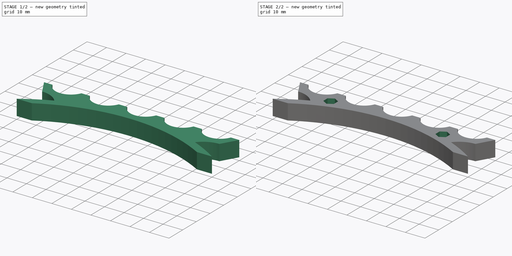
[diagram: build sequence overview — one tinted view per stage of 2, left to right]
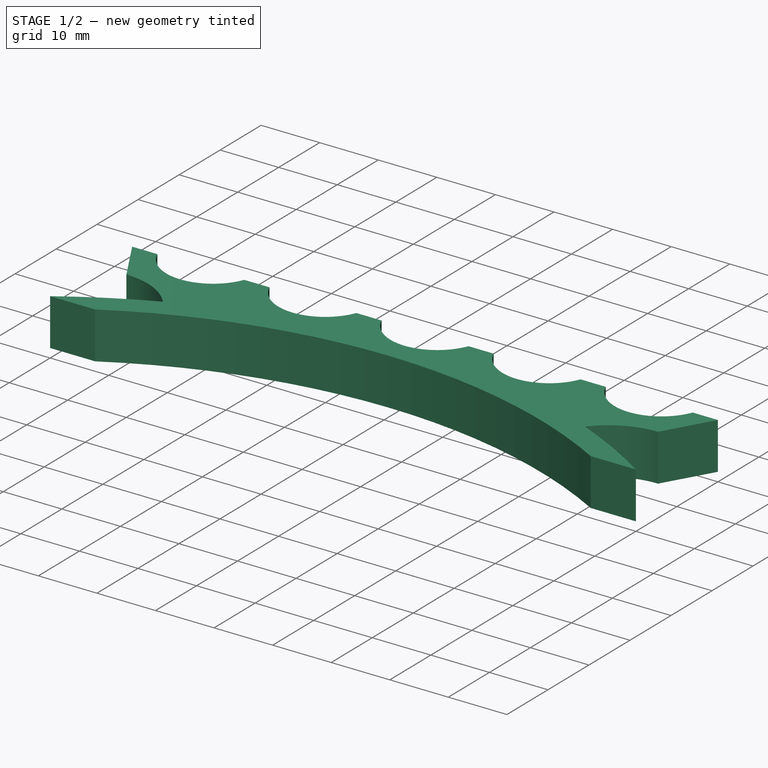
[diagram: stage 1 of 2 — iso view after this stage's code; geometry added in this stage tinted green]
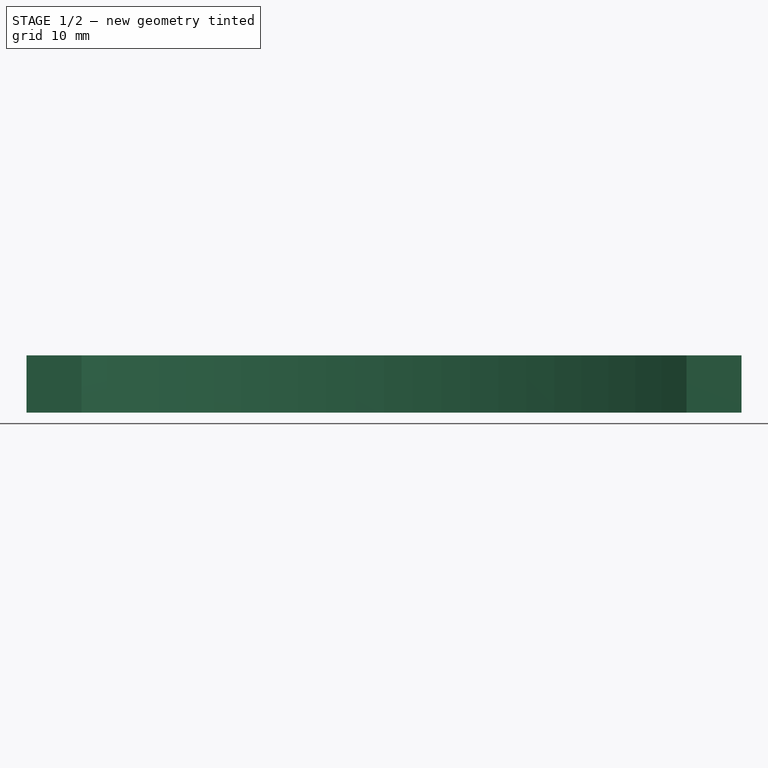
[diagram: stage 1 of 2 — front view after this stage's code; geometry added in this stage tinted green]
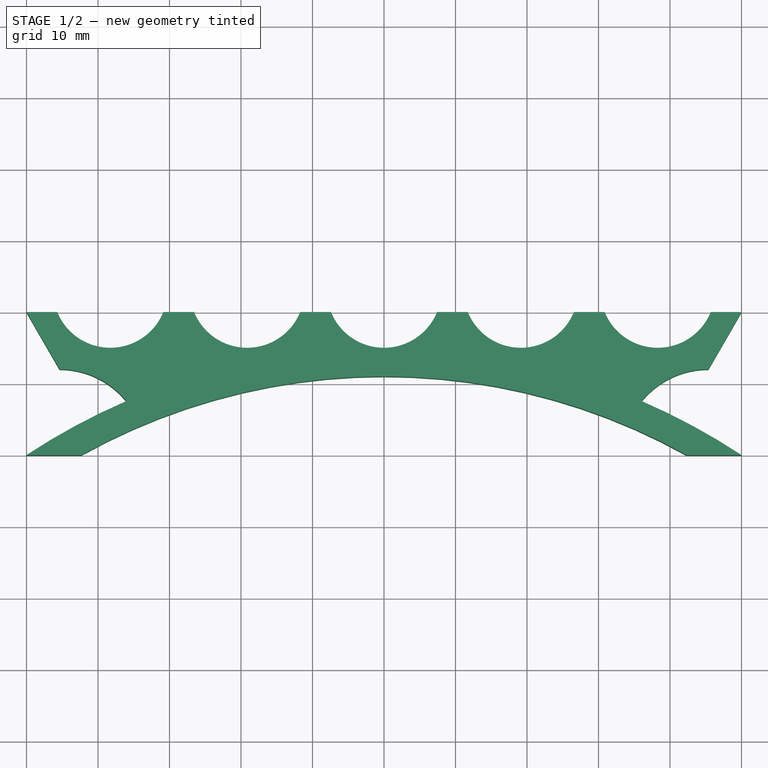
[diagram: stage 1 of 2 — top view after this stage's code; geometry added in this stage tinted green]
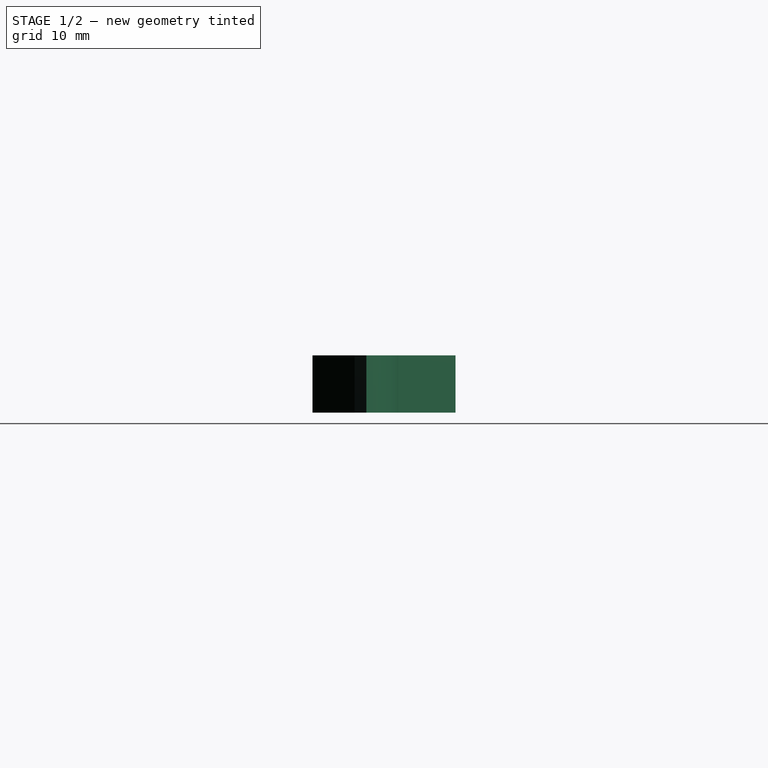
[diagram: stage 1 of 2 — right view after this stage's code; geometry added in this stage tinted green]
FCSTD DOCUMENT  (FreeCAD 0.14R2935 (Git))
Label: penstand1
License: All rights reserved
LicenseURL: http://en.wikipedia.org/wiki/All_rights_reserved
objects: Sketcher::SketchObject×2, PartDesign::Mirrored×2, PartDesign::Pad×1, PartDesign::Pocket×1
note: 8 computed .brp shape members not serialized (recipe doc carries the construction recipe); baked Part::Feature solids carry a one-line shape summary decoded from their .brp

FEATURE [Sketcher::SketchObject] Sketch
  sketch-geometry (18):
    g0: LineSegment StartX=-42.3005 StartY=0 StartZ=0 EndX=-50 EndY=0 EndZ=0
    g1: ArcOfCircle CenterX=0 CenterY=-75.8333 CenterZ=0 NormalX=0 NormalY=0 NormalZ=1 Radius=86.8333 StartAngle=1.5708 EndAngle=2.07962
    g2: ArcOfCircle CenterX=0 CenterY=-75.8333 CenterZ=0 NormalX=0 NormalY=0 NormalZ=1 Radius=90.8333 StartAngle=1.97887 EndAngle=2.15371
    g3: LineSegment StartX=-50 StartY=20 StartZ=0 EndX=-45.3812 EndY=12 EndZ=0
    g4: ArcOfCircle CenterX=-45.3812 CenterY=0 CenterZ=0 NormalX=0 NormalY=0 NormalZ=1 Radius=12 StartAngle=0.679541 EndAngle=1.5708
    g5: LineSegment [constr] StartX=-45.3812 StartY=0 StartZ=0 EndX=-45.3812 EndY=12 EndZ=0
    g6: ArcOfCircle CenterX=-38.2775 CenterY=23 CenterZ=0 NormalX=0 NormalY=0 NormalZ=1 Radius=8 StartAngle=3.52599 EndAngle=5.89879
    g7: ArcOfCircle CenterX=-19.1387 CenterY=23 CenterZ=0 NormalX=0 NormalY=0 NormalZ=1 Radius=8 StartAngle=3.52599 EndAngle=5.89879
    g8: ArcOfCircle CenterX=0 CenterY=23 CenterZ=0 NormalX=0 NormalY=0 NormalZ=1 Radius=8 StartAngle=3.52599 EndAngle=4.71239
    g9: LineSegment StartX=-45.6937 StartY=20 StartZ=0 EndX=-50 EndY=20 EndZ=0
    g10: LineSegment StartX=-30.8613 StartY=20 StartZ=0 EndX=-26.5549 EndY=20 EndZ=0
    g11: LineSegment [constr] StartX=-45.6937 StartY=20 StartZ=0 EndX=-30.8613 EndY=20 EndZ=0
    g12: LineSegment [constr] StartX=-26.5549 StartY=20 StartZ=0 EndX=-11.7225 EndY=20 EndZ=0
    g13: LineSegment StartX=-11.7225 StartY=20 StartZ=0 EndX=-7.4162 EndY=20 EndZ=0
    g14: LineSegment StartX=0 StartY=11 StartZ=0 EndX=0 EndY=15 EndZ=0
    g15: LineSegment [constr] StartX=-50 StartY=20 StartZ=0 EndX=-50 EndY=0 EndZ=0
    g16: ArcOfCircle [constr] CenterX=0 CenterY=-75.8333 CenterZ=0 NormalX=0 NormalY=0 NormalZ=1 Radius=90.8333 StartAngle=1.5708 EndAngle=1.97887
    g17: LineSegment [constr] StartX=-38.2775 StartY=23 StartZ=0 EndX=0 EndY=23 EndZ=0
  constraints (53):
    c: DistanceY(g0,g3) = 20
    c: DistanceX(g3,g8) = 50
    c: Horizontal(g0)
    c: PointOnObject(g0,g-1)
    c: PointOnObject(g1,g-2)
    c: Coincident(g1,g0)
    c: Coincident(g2,g1)
    c: Coincident(g2,g0)
    c: PointOnObject(g1,g-2)
    c: Angle(g3) = -1.0472
    c: Coincident(g4,g3)
    c: Coincident(g4,g2)
    c: Vertical(g5)
    c: Coincident(g3,g5)
    c: Coincident(g4,g5)
    c: Equal(g6,g7)
    c: Equal(g8,g7)
    c: Coincident(g9,g6)
    c: Horizontal(g9)
    c: Coincident(g9,g3)
    c: Coincident(g10,g6)
    c: Coincident(g10,g7)
    c: Horizontal(g10)
    c: Coincident(g11,g6)
    c: Coincident(g11,g6)
    c: Horizontal(g11)
    c: Coincident(g12,g7)
    c: Coincident(g12,g7)
    c: Horizontal(g12)
    c: Equal(g9,g10)
    c: Coincident(g13,g7)
    c: Coincident(g13,g8)
    c: Horizontal(g13)
    c: Equal(g13,g10)
    c: Coincident(g14,g1)
    c: Vertical(g14)
    c: PointOnObject(g4,g-1)
    c: Coincident(g8,g14)
    c: Radius(g8) = 8
    c: Coincident(g15,g3)
    c: Coincident(g15,g0)
    c: Vertical(g15)
    c: Coincident(g16,g1)
    c: Coincident(g16,g8)
    c: Coincident(g16,g2)
    c: DistanceY(g14) = 4
    c: Radius(g4) = 12
    c: Coincident(g17,g6)
    c: Horizontal(g17)
    c: PointOnObject(g17,g-2)
    c: PointOnObject(g7,g17)
    c: Coincident(g8,g17)
    c: DistanceY(g8,g8) = 3
FEATURE [PartDesign::Pad] Pad
  Length = 8
  Length2 = 100
  Sketch = -> Sketch
  Type = 0
FEATURE [PartDesign::Mirrored] Mirrored
  MirrorPlane = -> Sketch [V_Axis]
  Originals = -> [Pad]
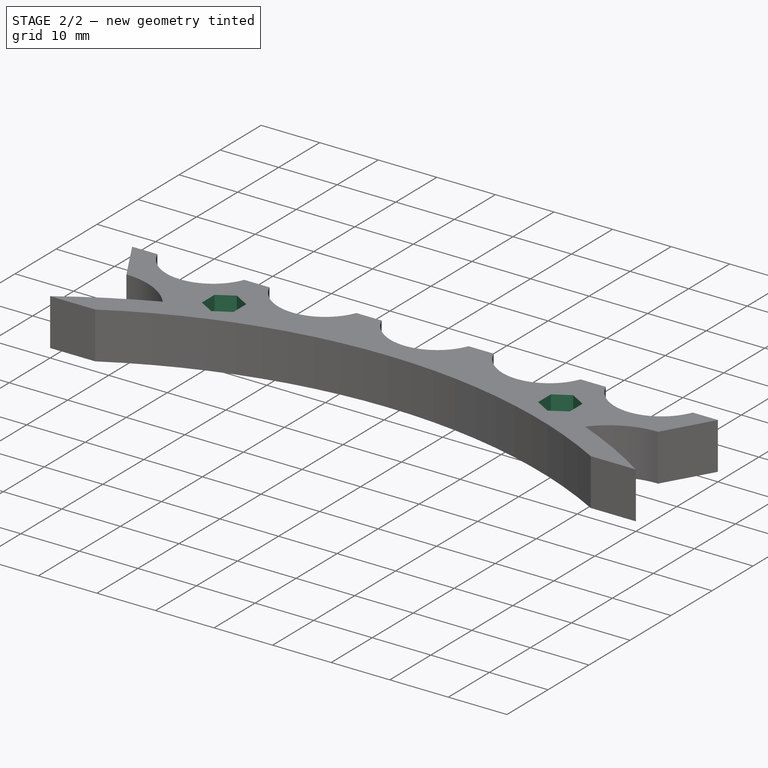
[diagram: stage 2 of 2 — iso view after this stage's code; geometry added in this stage tinted green]
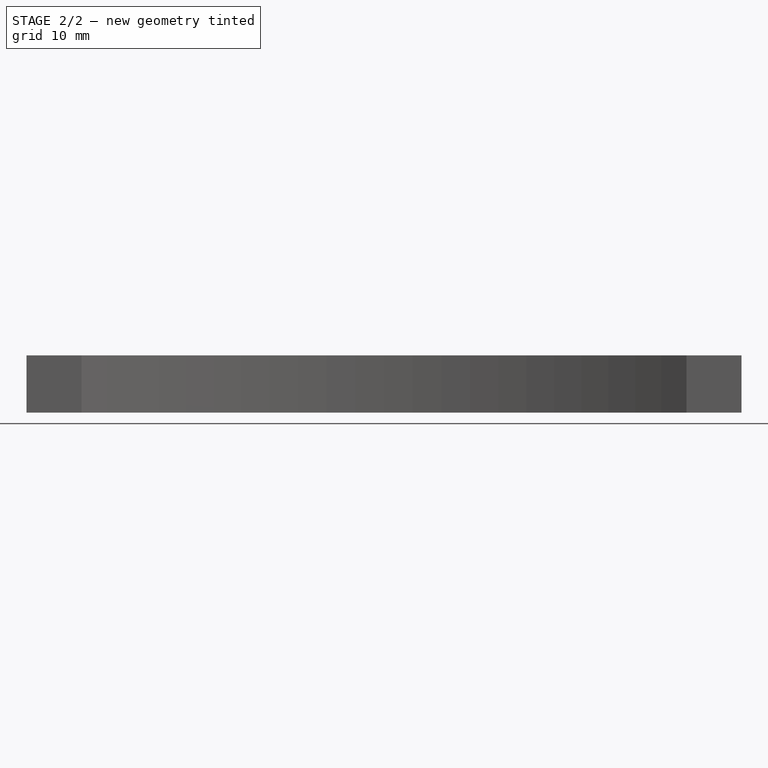
[diagram: stage 2 of 2 — front view after this stage's code; geometry added in this stage tinted green]
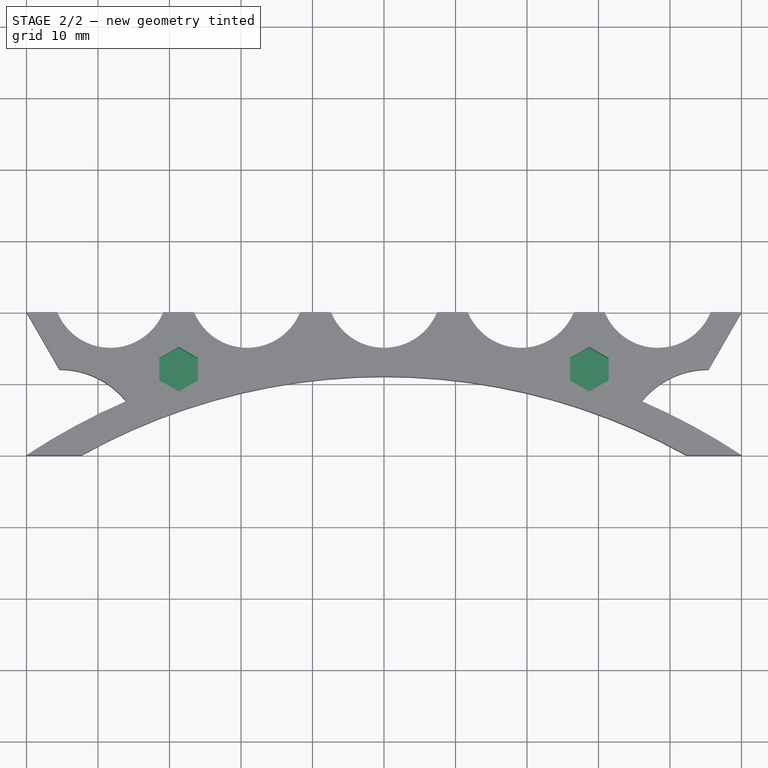
[diagram: stage 2 of 2 — top view after this stage's code; geometry added in this stage tinted green]
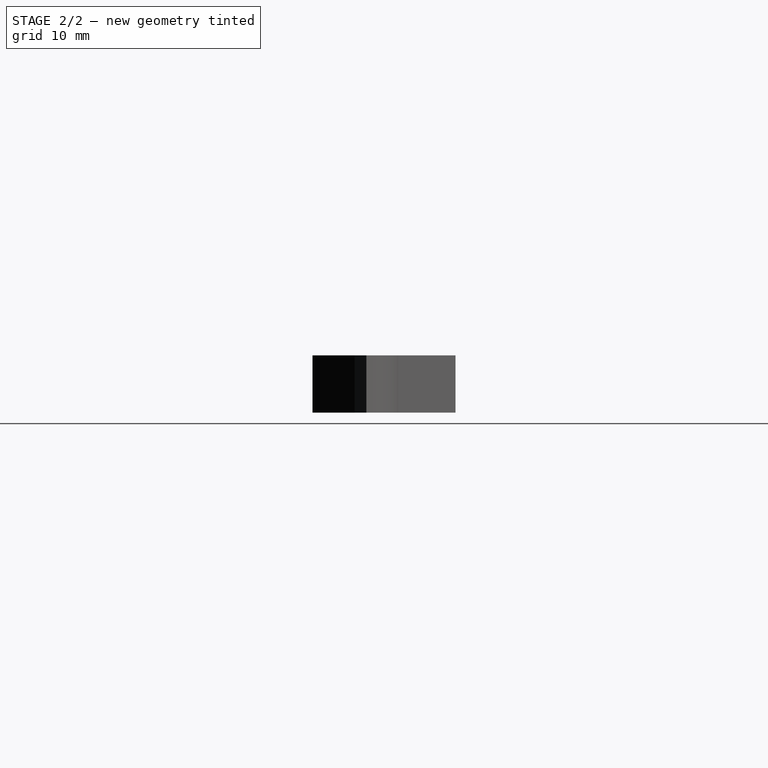
[diagram: stage 2 of 2 — right view after this stage's code; geometry added in this stage tinted green]
FEATURE [Sketcher::SketchObject] Sketch001
  ExternalGeometry = -> [Mirrored]
  Placement = pos=(0,0,8) rot=(0,0,1;0rad)
  Support = -> Mirrored [Face5]
  sketch-geometry (8):
    g0: Circle [constr] CenterX=-28.7081 CenterY=12 CenterZ=0 NormalX=0 NormalY=0 NormalZ=1 Radius=2.7
    g1: LineSegment [constr] StartX=-28.7081 StartY=12 StartZ=0 EndX=-28.7081 EndY=20 EndZ=0
    g2: LineSegment StartX=-28.7081 StartY=15.1177 StartZ=0 EndX=-31.4081 EndY=13.5588 EndZ=0
    g3: LineSegment StartX=-31.4081 StartY=13.5588 StartZ=0 EndX=-31.4081 EndY=10.4412 EndZ=0
    g4: LineSegment StartX=-31.4081 StartY=10.4412 StartZ=0 EndX=-28.7081 EndY=8.88231 EndZ=0
    g5: LineSegment StartX=-28.7081 StartY=8.88231 StartZ=0 EndX=-26.0081 EndY=10.4412 EndZ=0
    g6: LineSegment StartX=-26.0081 StartY=10.4412 StartZ=0 EndX=-26.0081 EndY=13.5588 EndZ=0
    g7: LineSegment StartX=-28.7081 StartY=15.1177 StartZ=0 EndX=-26.0081 EndY=13.5588 EndZ=0
  constraints (24):
    c: Radius(g0) = 2.7
    c: Coincident(g1,g0)
    c: PointOnObject(g1,g-3)
    c: Vertical(g1)
    c: Symmetric(g-3,g-3,g1)
    c: DistanceY(g1) = 8
    c: Coincident(g2,g3)
    c: Tangent(g3,g0)
    c: Coincident(g3,g4)
    c: Tangent(g4,g0)
    c: Coincident(g4,g5)
    c: Tangent(g5,g0)
    c: Coincident(g5,g6)
    c: Equal(g2,g6)
    c: Equal(g6,g5)
    c: Equal(g5,g4)
    c: Equal(g4,g3)
    c: Coincident(g7,g2)
    c: Coincident(g7,g6)
    c: Equal(g7,g6)
    c: Tangent(g7,g0)
    c: Tangent(g6,g0)
    c: Vertical(g6)
    c: Vertical(g3)
FEATURE [PartDesign::Pocket] Pocket
  Length = 6
  Sketch = -> Sketch001
  Type = 0
FEATURE [PartDesign::Mirrored] Mirrored001
  MirrorPlane = -> Sketch001 [V_Axis]
  Originals = -> [Pocket]
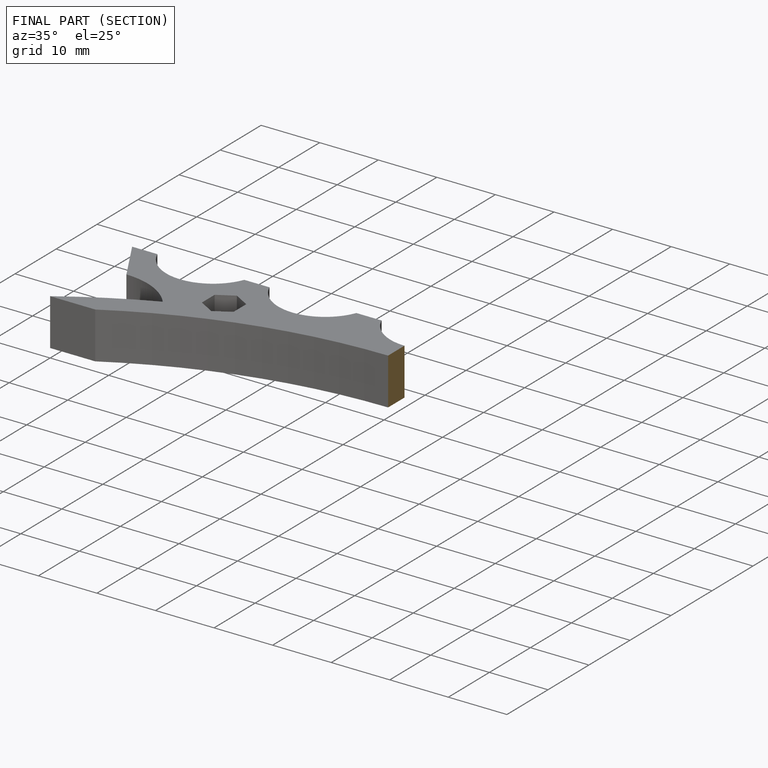
[diagram: finished part — half-section view (interior)]
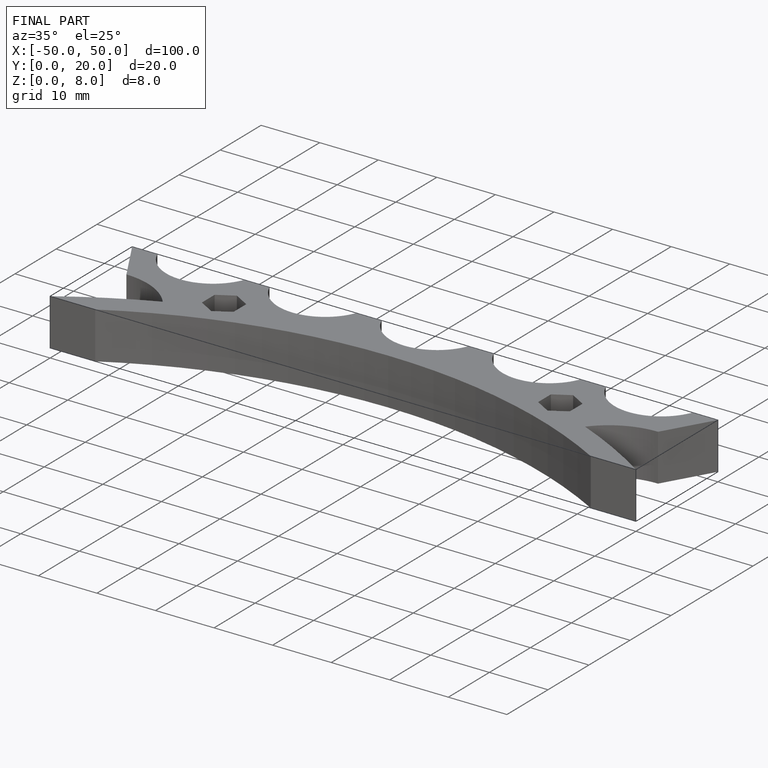
[diagram: finished part — iso view with bounding-box wireframe]
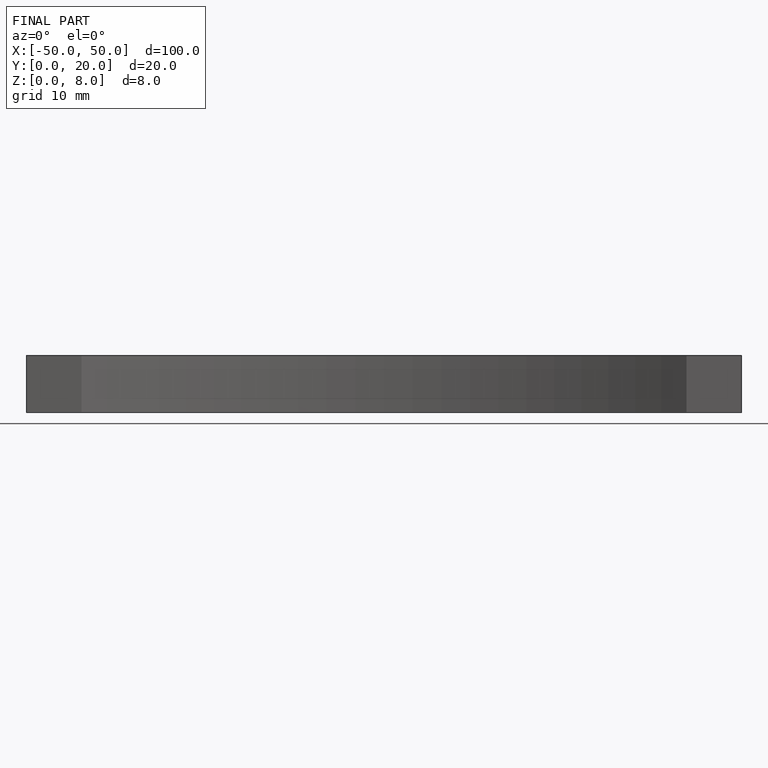
[diagram: finished part — front view with bounding-box wireframe]
